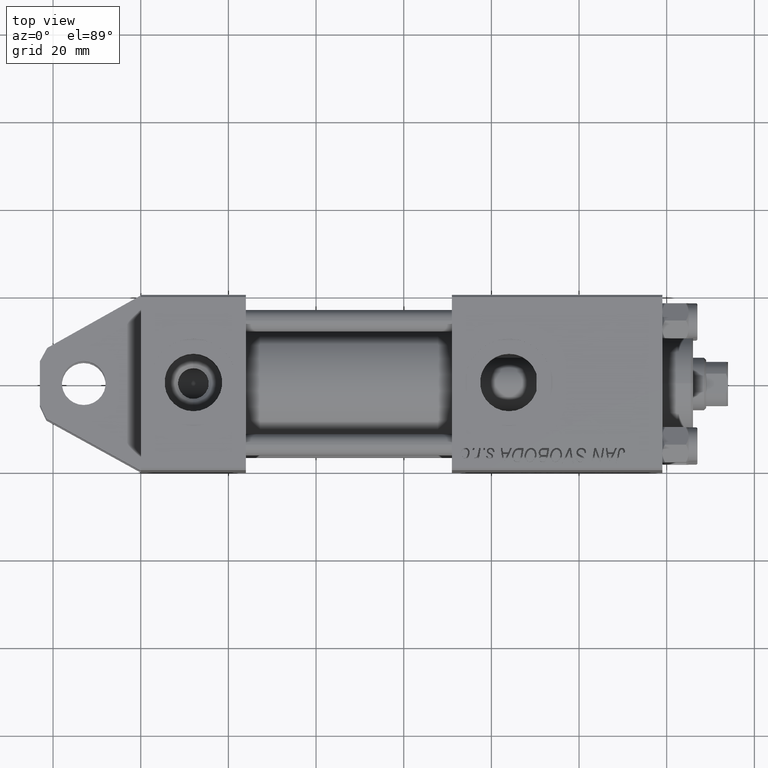
[diagram: clean part render]
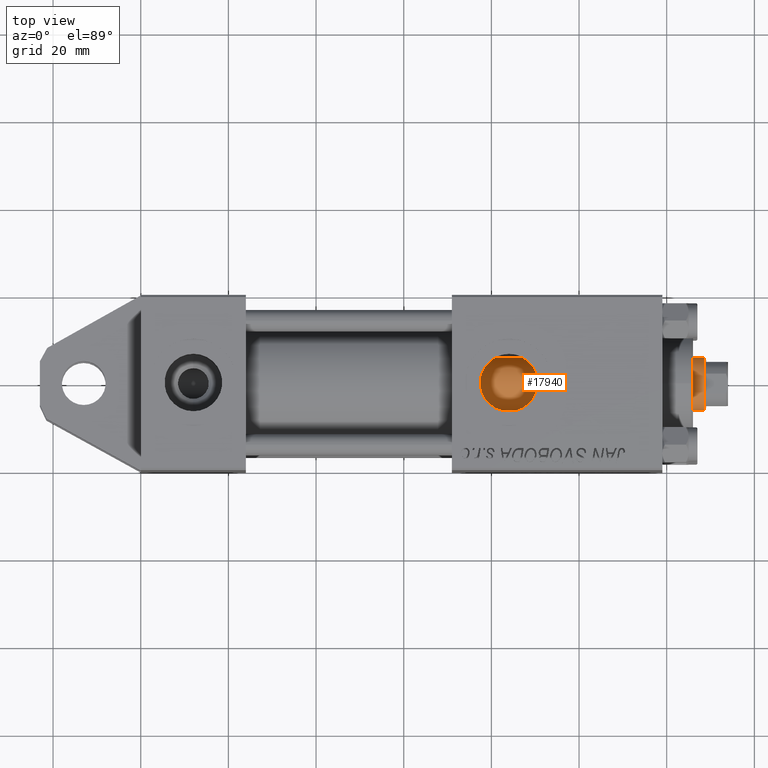
[diagram: same view with one face highlighted and labeled with its STEP entity id]
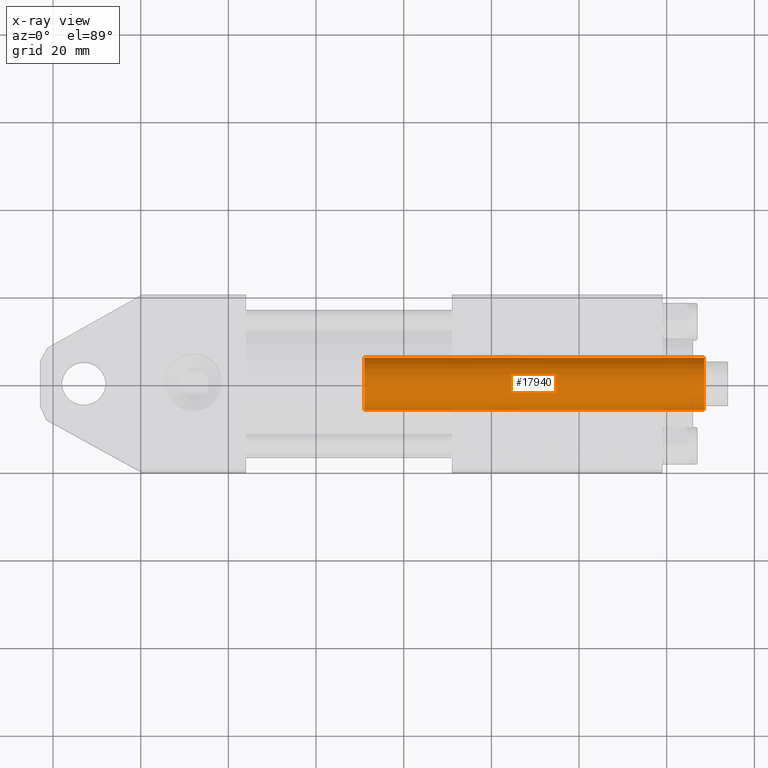
[diagram: x-ray of the same camera — body ghosted, the highlighted face saturated]
A machine part, top view. The second image highlights one B-rep face of the part: STEP entity #17940.
The next image is the same camera in x-ray: the body ghosted, the highlighted face saturated — about 3% of this face is hidden behind the body in this view.
In plain terms, the highlighted cylindrical surface (edge-blend (fillet) strip) has radius 6 mm, axis along (-1, 0, 0).
Its self-contained STEP definition (entity closure, byte-faithful):
#52 = LINE ( 'NONE', #11109, #19310 ) ;
#972 = DIRECTION ( 'NONE',  ( 1.000000000000000000, 0.000000000000000000, 0.000000000000000000 ) ) ;
#3997 = LINE ( 'NONE', #31590, #38656 ) ;
#6523 = CARTESIAN_POINT ( 'NONE',  ( -6.000000000000000888, 0.000000000000000000, 27.00000000000000000 ) ) ;
#6859 = DIRECTION ( 'NONE',  ( -0.000000000000000000, -0.000000000000000000, -1.000000000000000000 ) ) ;
#8318 = VERTEX_POINT ( 'NONE', #36010 ) ;
#9178 = ORIENTED_EDGE ( 'NONE', *, *, #10873, .F. ) ;
#10873 = EDGE_CURVE ( 'NONE', #38134, #34354, #52, .T. ) ;
#10907 = DIRECTION ( 'NONE',  ( -1.000000000000000000, 0.000000000000000000, 0.000000000000000000 ) ) ;
#11109 = CARTESIAN_POINT ( 'NONE',  ( 6.000000000000000888, 7.347880794884120722E-16, 105.0000000000000000 ) ) ;
#12758 = CIRCLE ( 'NONE', #20769, 6.000000000000000888 ) ;
#14686 = EDGE_CURVE ( 'NONE', #8318, #47219, #3997, .T. ) ;
#17217 = EDGE_CURVE ( 'NONE', #47219, #34354, #35572, .T. ) ;
#17706 = DIRECTION ( 'NONE',  ( -0.000000000000000000, -0.000000000000000000, -1.000000000000000000 ) ) ;
#17940 = ADVANCED_FACE ( 'NONE', ( #41273 ), #33256, .T. ) ;
#19310 = VECTOR ( 'NONE', #6859, 1000.000000000000000 ) ;
#19484 = CARTESIAN_POINT ( 'NONE',  ( 6.000000000000000888, 7.347880794884120722E-16, 27.00000000000000000 ) ) ;
#19560 = DIRECTION ( 'NONE',  ( -0.000000000000000000, -0.000000000000000000, -1.000000000000000000 ) ) ;
#20769 = AXIS2_PLACEMENT_3D ( 'NONE', #43627, #47422, #972 ) ;
#20890 = ORIENTED_EDGE ( 'NONE', *, *, #14686, .T. ) ;
#21113 = CARTESIAN_POINT ( 'NONE',  ( 6.000000000000000888, 7.347880794884120722E-16, 104.5000000000000142 ) ) ;
#24578 = ORIENTED_EDGE ( 'NONE', *, *, #35040, .T. ) ;
#27447 = DIRECTION ( 'NONE',  ( 0.000000000000000000, 0.000000000000000000, 1.000000000000000000 ) ) ;
#30960 = ORIENTED_EDGE ( 'NONE', *, *, #17217, .T. ) ;
#31590 = CARTESIAN_POINT ( 'NONE',  ( -6.000000000000000888, 0.000000000000000000, 105.0000000000000000 ) ) ;
#33256 = CYLINDRICAL_SURFACE ( 'NONE', #49200, 6.000000000000000888 ) ;
#34354 = VERTEX_POINT ( 'NONE', #19484 ) ;
#35040 = EDGE_CURVE ( 'NONE', #38134, #8318, #12758, .T. ) ;
#35572 = CIRCLE ( 'NONE', #36359, 6.000000000000000888 ) ;
#36010 = CARTESIAN_POINT ( 'NONE',  ( -6.000000000000000888, 0.000000000000000000, 104.5000000000000142 ) ) ;
#36359 = AXIS2_PLACEMENT_3D ( 'NONE', #46545, #27447, #42761 ) ;
#37509 = CARTESIAN_POINT ( 'NONE',  ( 0.000000000000000000, 0.000000000000000000, 105.0000000000000000 ) ) ;
#37815 = EDGE_LOOP ( 'NONE', ( #9178, #24578, #20890, #30960 ) ) ;
#38134 = VERTEX_POINT ( 'NONE', #21113 ) ;
#38656 = VECTOR ( 'NONE', #19560, 1000.000000000000000 ) ;
#41273 = FACE_OUTER_BOUND ( 'NONE', #37815, .T. ) ;
#42761 = DIRECTION ( 'NONE',  ( 1.000000000000000000, 0.000000000000000000, 0.000000000000000000 ) ) ;
#43627 = CARTESIAN_POINT ( 'NONE',  ( 0.000000000000000000, 0.000000000000000000, 104.5000000000000142 ) ) ;
#46545 = CARTESIAN_POINT ( 'NONE',  ( 0.000000000000000000, 0.000000000000000000, 27.00000000000000000 ) ) ;
#47219 = VERTEX_POINT ( 'NONE', #6523 ) ;
#47422 = DIRECTION ( 'NONE',  ( 0.000000000000000000, 0.000000000000000000, -1.000000000000000000 ) ) ;
#49200 = AXIS2_PLACEMENT_3D ( 'NONE', #37509, #17706, #10907 ) ;